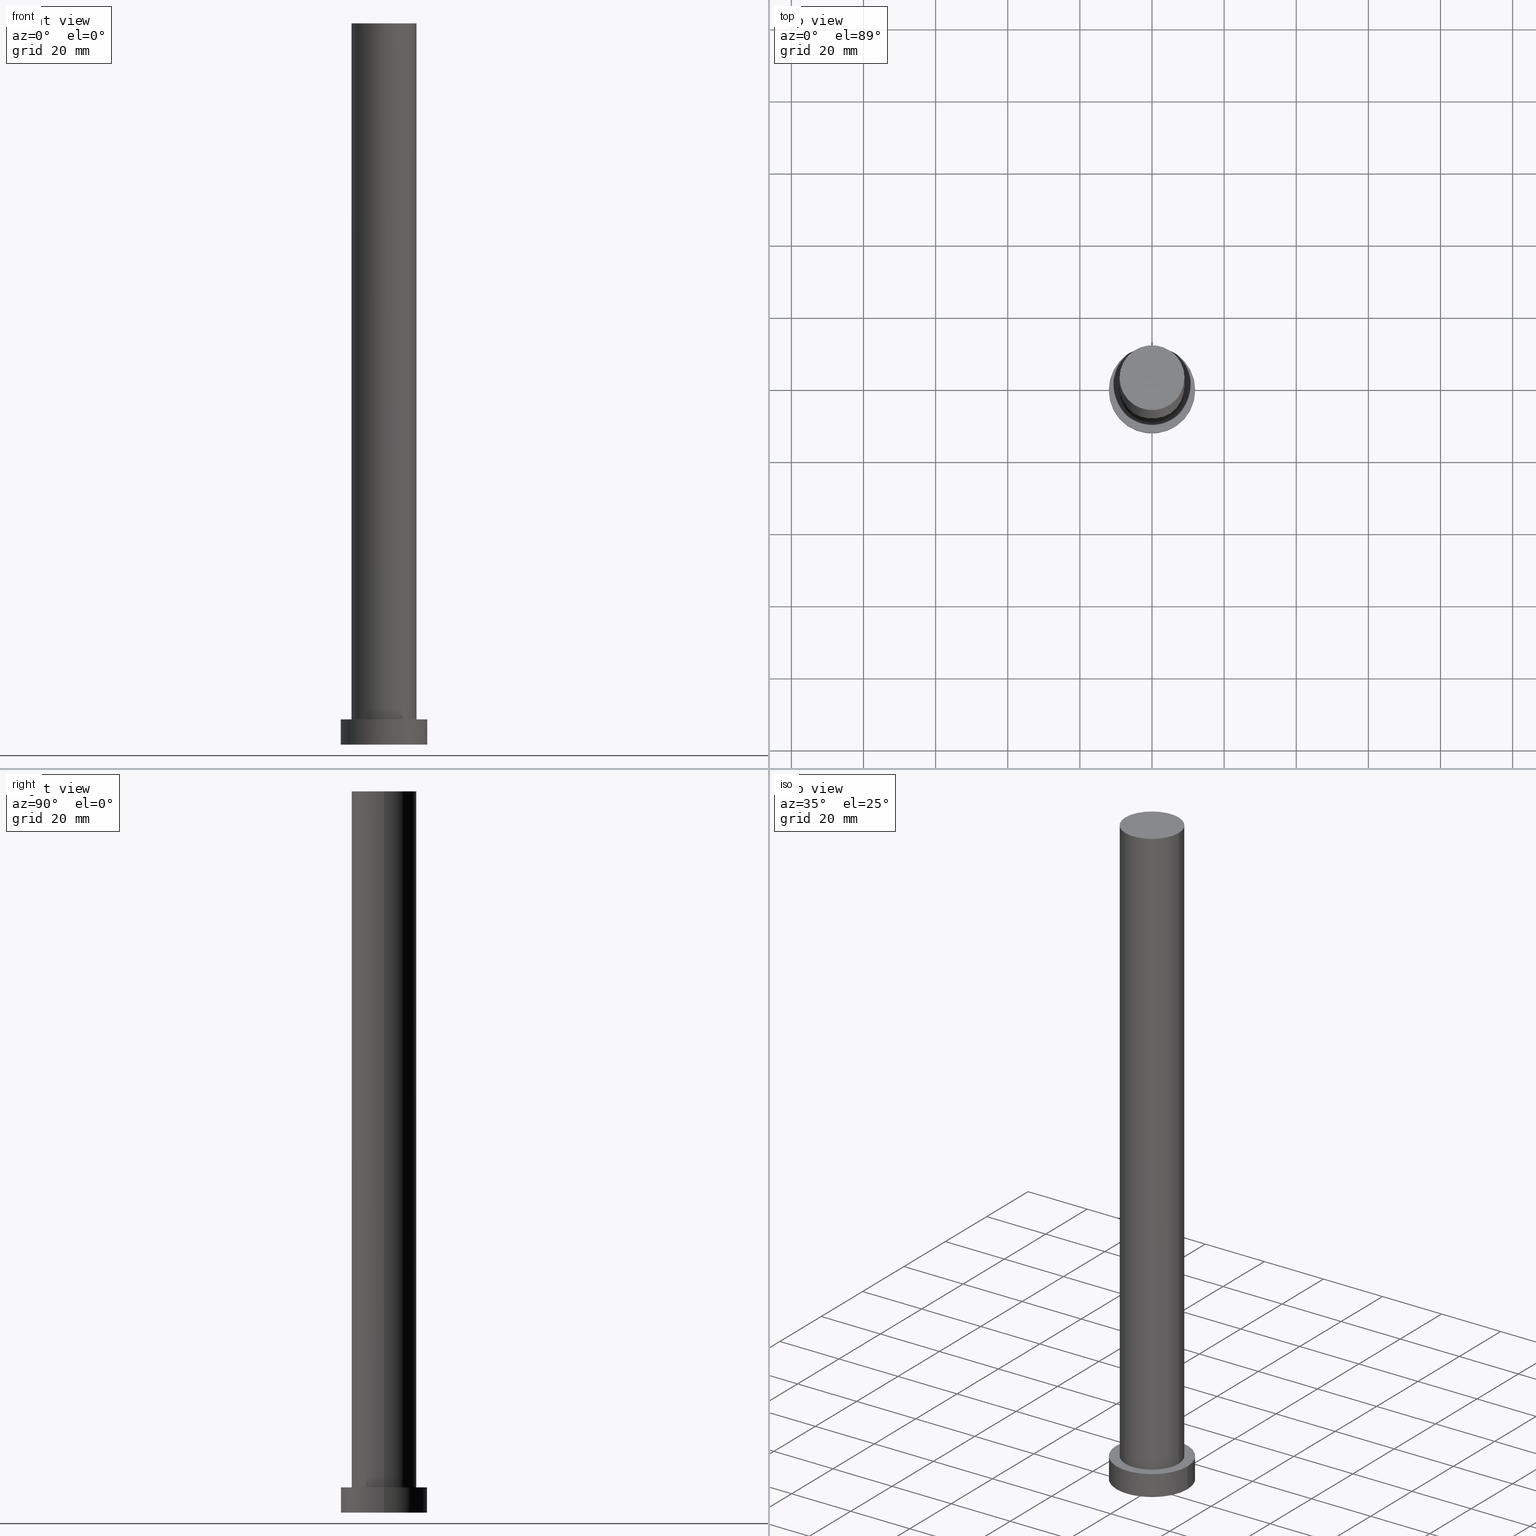
[diagram: canonical four-view strip — front | top / right | iso, engineering-drawing reading convention]
A machine part, canonical four-view strip (front | top / right | iso — engineering-drawing reading convention). The complete STEP part file that produces these views, byte-faithful:
ISO-10303-21;
HEADER;
FILE_DESCRIPTION (( 'STEP AP203' ),
    '1' );
FILE_NAME ('e8e5.STEP',
    '2023-02-13T07:50:47',
    ( '' ),
    ( '' ),
    'SwSTEP 2.0',
    'SolidWorks 2019',
    '' );
FILE_SCHEMA (( 'CONFIG_CONTROL_DESIGN' ));
ENDSEC;

DATA;
#1 = CALENDAR_DATE ( 2023, 13, 2 ) ;
#2 = PRODUCT_DEFINITION_SHAPE ( 'NONE', 'NONE',  #219 ) ;
#3 = VERTEX_POINT ( 'NONE', #62 ) ;
#4 = VERTEX_POINT ( 'NONE', #147 ) ;
#5 = LOCAL_TIME ( 8, 50, 47.00000000000000000, #19 ) ;
#6 = EDGE_CURVE ( 'NONE', #131, #170, #41, .T. ) ;
#7 = AXIS2_PLACEMENT_3D ( 'NONE', #193, #39, #99 ) ;
#8 = ORIENTED_EDGE ( 'NONE', *, *, #43, .F. ) ;
#9 = APPROVAL_ROLE ( '' ) ;
#10 = VERTEX_POINT ( 'NONE', #183 ) ;
#11 = DIRECTION ( 'NONE',  ( 1.000000000000000000, 0.000000000000000000, 0.000000000000000000 ) ) ;
#12 = ADVANCED_FACE ( 'NONE', ( #66 ), #168, .T. ) ;
#13 = DIRECTION ( 'NONE',  ( -0.000000000000000000, -0.000000000000000000, -1.000000000000000000 ) ) ;
#14 = CARTESIAN_POINT ( 'NONE',  ( -9.000000000000000000, 0.000000000000000000, 200.0000000000000000 ) ) ;
#15 = DIRECTION ( 'NONE',  ( -0.000000000000000000, -0.000000000000000000, -1.000000000000000000 ) ) ;
#16 = EDGE_CURVE ( 'NONE', #108, #129, #75, .T. ) ;
#17 = CARTESIAN_POINT ( 'NONE',  ( 0.000000000000000000, 0.000000000000000000, 0.000000000000000000 ) ) ;
#18 = COORDINATED_UNIVERSAL_TIME_OFFSET ( 1, 0, .AHEAD. ) ;
#19 = COORDINATED_UNIVERSAL_TIME_OFFSET ( 1, 0, .AHEAD. ) ;
#20 = EDGE_CURVE ( 'NONE', #170, #131, #59, .T. ) ;
#21 = DIRECTION ( 'NONE',  ( 1.000000000000000000, 0.000000000000000000, 0.000000000000000000 ) ) ;
#22 = AXIS2_PLACEMENT_3D ( 'NONE', #181, #148, #123 ) ;
#23 = CARTESIAN_POINT ( 'NONE',  ( -12.00000000000000178, 0.000000000000000000, 7.000000000000000000 ) ) ;
#24 = ORIENTED_EDGE ( 'NONE', *, *, #160, .F. ) ;
#25 = APPLICATION_PROTOCOL_DEFINITION ( 'international standard', 'config_control_design', 1994, #169 ) ;
#26 = APPROVAL ( #30, 'NEUR�EN�' ) ;
#27 = ORIENTED_EDGE ( 'NONE', *, *, #87, .T. ) ;
#28 = ADVANCED_FACE ( 'NONE', ( #142 ), #37, .T. ) ;
#29 = ORIENTED_EDGE ( 'NONE', *, *, #110, .T. ) ;
#30 = APPROVAL_STATUS ( 'not_yet_approved' ) ;
#31 = LOCAL_TIME ( 8, 50, 47.00000000000000000, #220 ) ;
#32 = EDGE_LOOP ( 'NONE', ( #24, #27, #89, #8 ) ) ;
#33 = DIRECTION ( 'NONE',  ( -1.000000000000000000, 0.000000000000000000, 0.000000000000000000 ) ) ;
#34 = DIRECTION ( 'NONE',  ( 1.000000000000000000, 0.000000000000000000, 0.000000000000000000 ) ) ;
#35 = CARTESIAN_POINT ( 'NONE',  ( 0.000000000000000000, 0.000000000000000000, 7.000000000000000000 ) ) ;
#36 = VECTOR ( 'NONE', #231, 1000.000000000000000 ) ;
#37 = CYLINDRICAL_SURFACE ( 'NONE', #103, 12.00000000000000178 ) ;
#38 = COORDINATED_UNIVERSAL_TIME_OFFSET ( 1, 0, .AHEAD. ) ;
#39 = DIRECTION ( 'NONE',  ( -0.000000000000000000, -0.000000000000000000, -1.000000000000000000 ) ) ;
#40 = PERSON_AND_ORGANIZATION ( #71, #202 ) ;
#41 = CIRCLE ( 'NONE', #73, 12.00000000000000178 ) ;
#42 = DATE_AND_TIME ( #200, #31 ) ;
#43 = EDGE_CURVE ( 'NONE', #241, #170, #116, .T. ) ;
#44 = DATE_AND_TIME ( #47, #206 ) ;
#45 = ORIENTED_EDGE ( 'NONE', *, *, #248, .F. ) ;
#46 = CIRCLE ( 'NONE', #22, 9.000000000000000000 ) ;
#47 = CALENDAR_DATE ( 2023, 13, 2 ) ;
#48 = ADVANCED_FACE ( 'NONE', ( #157 ), #195, .T. ) ;
#49 = ORIENTED_EDGE ( 'NONE', *, *, #16, .F. ) ;
#50 = CIRCLE ( 'NONE', #230, 9.000000000000000000 ) ;
#51 = CARTESIAN_POINT ( 'NONE',  ( -12.00000000000000178, 0.000000000000000000, 0.000000000000000000 ) ) ;
#52 = DIRECTION ( 'NONE',  ( 0.000000000000000000, 0.000000000000000000, 1.000000000000000000 ) ) ;
#53 = DIRECTION ( 'NONE',  ( -1.000000000000000000, 0.000000000000000000, 0.000000000000000000 ) ) ;
#54 = CARTESIAN_POINT ( 'NONE',  ( 0.000000000000000000, 0.000000000000000000, 0.000000000000000000 ) ) ;
#55 = AXIS2_PLACEMENT_3D ( 'NONE', #106, #61, #100 ) ;
#56 = LINE ( 'NONE', #14, #36 ) ;
#57 = PERSON_AND_ORGANIZATION ( #71, #202 ) ;
#58 = PERSON_AND_ORGANIZATION ( #71, #202 ) ;
#59 = CIRCLE ( 'NONE', #224, 12.00000000000000178 ) ;
#60 = ADVANCED_FACE ( 'NONE', ( #213 ), #74, .F. ) ;
#61 = DIRECTION ( 'NONE',  ( 0.000000000000000000, 0.000000000000000000, 1.000000000000000000 ) ) ;
#62 = CARTESIAN_POINT ( 'NONE',  ( -9.000000000000000000, 0.000000000000000000, 7.000000000000000000 ) ) ;
#63 = ORIENTED_EDGE ( 'NONE', *, *, #16, .T. ) ;
#64 = CC_DESIGN_PERSON_AND_ORGANIZATION_ASSIGNMENT ( #40, #125, ( #237 ) ) ;
#65 = APPROVAL_ROLE ( '' ) ;
#66 = FACE_OUTER_BOUND ( 'NONE', #135, .T. ) ;
#67 = CC_DESIGN_APPROVAL ( #180, ( #219 ) ) ;
#68 = EDGE_LOOP ( 'NONE', ( #29, #222 ) ) ;
#69 = AXIS2_PLACEMENT_3D ( 'NONE', #93, #192, #53 ) ;
#70 = ORIENTED_EDGE ( 'NONE', *, *, #20, .F. ) ;
#71 = PERSON ( 'NEUR�EN�', 'NEUR�EN�', 'NEUR�EN�', ('NEUR�EN�'), ('NEUR�EN�'), ('NEUR�EN�') ) ;
#72 = DIRECTION ( 'NONE',  ( 0.000000000000000000, 0.000000000000000000, 1.000000000000000000 ) ) ;
#73 = AXIS2_PLACEMENT_3D ( 'NONE', #126, #201, #21 ) ;
#74 = PLANE ( 'NONE',  #227 ) ;
#75 = LINE ( 'NONE', #216, #155 ) ;
#76 = CARTESIAN_POINT ( 'NONE',  ( 9.000000000000000000, 1.102182119232617714E-15, 200.0000000000000000 ) ) ;
#77 = DIRECTION ( 'NONE',  ( 1.000000000000000000, 0.000000000000000000, -0.000000000000000000 ) ) ;
#78 =( GEOMETRIC_REPRESENTATION_CONTEXT ( 3 ) GLOBAL_UNCERTAINTY_ASSIGNED_CONTEXT ( ( #173 ) ) GLOBAL_UNIT_ASSIGNED_CONTEXT ( ( #164, #81, #203 ) ) REPRESENTATION_CONTEXT ( 'NONE', 'WORKASPACE' ) );
#79 = APPROVAL_STATUS ( 'not_yet_approved' ) ;
#80 = DIRECTION ( 'NONE',  ( 1.000000000000000000, 0.000000000000000000, 0.000000000000000000 ) ) ;
#81 =( NAMED_UNIT ( * ) PLANE_ANGLE_UNIT ( ) SI_UNIT ( $, .RADIAN. ) );
#82 = AXIS2_PLACEMENT_3D ( 'NONE', #204, #249, #234 ) ;
#83 = CC_DESIGN_SECURITY_CLASSIFICATION ( #237, ( #172 ) ) ;
#84 = APPROVAL_DATE_TIME ( #44, #152 ) ;
#85 = DATE_TIME_ROLE ( 'creation_date' ) ;
#86 = ORIENTED_EDGE ( 'NONE', *, *, #119, .F. ) ;
#87 = EDGE_CURVE ( 'NONE', #4, #131, #121, .T. ) ;
#88 = APPROVAL_PERSON_ORGANIZATION ( #58, #180, #146 ) ;
#89 = ORIENTED_EDGE ( 'NONE', *, *, #6, .T. ) ;
#90 = ORIENTED_EDGE ( 'NONE', *, *, #196, .F. ) ;
#91 = CARTESIAN_POINT ( 'NONE',  ( 0.000000000000000000, 0.000000000000000000, 7.000000000000000000 ) ) ;
#92 = CC_DESIGN_APPROVAL ( #26, ( #237 ) ) ;
#93 = CARTESIAN_POINT ( 'NONE',  ( 0.000000000000000000, 0.000000000000000000, 7.000000000000000000 ) ) ;
#94 = CARTESIAN_POINT ( 'NONE',  ( 9.000000000000000000, 1.102182119232617714E-15, 7.000000000000000000 ) ) ;
#95 = ADVANCED_FACE ( 'NONE', ( #114, #247 ), #174, .T. ) ;
#96 = PERSON_AND_ORGANIZATION ( #71, #202 ) ;
#97 = DIRECTION ( 'NONE',  ( -0.000000000000000000, -0.000000000000000000, -1.000000000000000000 ) ) ;
#98 = DATE_AND_TIME ( #1, #112 ) ;
#99 = DIRECTION ( 'NONE',  ( -1.000000000000000000, 0.000000000000000000, 0.000000000000000000 ) ) ;
#100 = DIRECTION ( 'NONE',  ( 1.000000000000000000, 0.000000000000000000, 0.000000000000000000 ) ) ;
#101 = PERSON_AND_ORGANIZATION ( #71, #202 ) ;
#102 = DATE_AND_TIME ( #198, #150 ) ;
#103 = AXIS2_PLACEMENT_3D ( 'NONE', #35, #212, #33 ) ;
#104 = APPLICATION_CONTEXT ( 'configuration controlled 3d designs of mechanical parts and assemblies' ) ;
#105 = ORIENTED_EDGE ( 'NONE', *, *, #160, .T. ) ;
#106 = CARTESIAN_POINT ( 'NONE',  ( 0.000000000000000000, 0.000000000000000000, 0.000000000000000000 ) ) ;
#107 = CC_DESIGN_PERSON_AND_ORGANIZATION_ASSIGNMENT ( #145, #225, ( #219 ) ) ;
#108 = VERTEX_POINT ( 'NONE', #76 ) ;
#109 = AXIS2_PLACEMENT_3D ( 'NONE', #140, #72, #154 ) ;
#110 = EDGE_CURVE ( 'NONE', #10, #108, #242, .T. ) ;
#111 = AXIS2_PLACEMENT_3D ( 'NONE', #235, #232, #229 ) ;
#112 = LOCAL_TIME ( 8, 50, 47.00000000000000000, #38 ) ;
#113 = ORIENTED_EDGE ( 'NONE', *, *, #209, .F. ) ;
#114 = FACE_BOUND ( 'NONE', #149, .T. ) ;
#115 = DESIGN_CONTEXT ( 'detailed design', #104, 'design' ) ;
#116 = LINE ( 'NONE', #250, #136 ) ;
#117 = MANIFOLD_SOLID_BREP ( 'P�idat vysunut�m3', #128 ) ;
#118 = VECTOR ( 'NONE', #97, 1000.000000000000000 ) ;
#119 = EDGE_CURVE ( 'NONE', #10, #3, #56, .T. ) ;
#120 = DIRECTION ( 'NONE',  ( 0.000000000000000000, 0.000000000000000000, 1.000000000000000000 ) ) ;
#121 = LINE ( 'NONE', #162, #118 ) ;
#122 = CYLINDRICAL_SURFACE ( 'NONE', #69, 12.00000000000000178 ) ;
#123 = DIRECTION ( 'NONE',  ( 1.000000000000000000, 0.000000000000000000, 0.000000000000000000 ) ) ;
#124 = PERSON_AND_ORGANIZATION ( #71, #202 ) ;
#125 = PERSON_AND_ORGANIZATION_ROLE ( 'classification_officer' ) ;
#126 = CARTESIAN_POINT ( 'NONE',  ( 0.000000000000000000, 0.000000000000000000, 0.000000000000000000 ) ) ;
#127 = MECHANICAL_CONTEXT ( 'NONE', #169, 'mechanical' ) ;
#128 = CLOSED_SHELL ( 'NONE', ( #12, #28, #134, #95, #60, #48, #165 ) ) ;
#129 = VERTEX_POINT ( 'NONE', #94 ) ;
#130 = DIRECTION ( 'NONE',  ( 0.000000000000000000, 0.000000000000000000, 1.000000000000000000 ) ) ;
#131 = VERTEX_POINT ( 'NONE', #143 ) ;
#132 = ORIENTED_EDGE ( 'NONE', *, *, #110, .F. ) ;
#133 = APPROVAL_PERSON_ORGANIZATION ( #96, #26, #9 ) ;
#134 = ADVANCED_FACE ( 'NONE', ( #217 ), #122, .T. ) ;
#135 = EDGE_LOOP ( 'NONE', ( #45, #63, #151, #86 ) ) ;
#136 = VECTOR ( 'NONE', #13, 1000.000000000000000 ) ;
#137 = CC_DESIGN_APPROVAL ( #152, ( #172 ) ) ;
#138 = CARTESIAN_POINT ( 'NONE',  ( 0.000000000000000000, 0.000000000000000000, 7.000000000000000000 ) ) ;
#139 = CARTESIAN_POINT ( 'NONE',  ( 0.000000000000000000, 0.000000000000000000, 7.000000000000000000 ) ) ;
#140 = CARTESIAN_POINT ( 'NONE',  ( 0.000000000000000000, 0.000000000000000000, 200.0000000000000000 ) ) ;
#141 = CIRCLE ( 'NONE', #161, 9.000000000000000000 ) ;
#142 = FACE_OUTER_BOUND ( 'NONE', #32, .T. ) ;
#143 = CARTESIAN_POINT ( 'NONE',  ( 12.00000000000000178, 1.469576158976824144E-15, 0.000000000000000000 ) ) ;
#144 = PERSON_AND_ORGANIZATION_ROLE ( 'design_supplier' ) ;
#145 = PERSON_AND_ORGANIZATION ( #71, #202 ) ;
#146 = APPROVAL_ROLE ( '' ) ;
#147 = CARTESIAN_POINT ( 'NONE',  ( 12.00000000000000178, 1.469576158976824144E-15, 7.000000000000000000 ) ) ;
#148 = DIRECTION ( 'NONE',  ( 0.000000000000000000, 0.000000000000000000, 1.000000000000000000 ) ) ;
#149 = EDGE_LOOP ( 'NONE', ( #228, #113 ) ) ;
#150 = LOCAL_TIME ( 8, 50, 47.00000000000000000, #184 ) ;
#151 = ORIENTED_EDGE ( 'NONE', *, *, #209, .T. ) ;
#152 = APPROVAL ( #221, 'NEUR�EN�' ) ;
#153 = ORIENTED_EDGE ( 'NONE', *, *, #20, .T. ) ;
#154 = DIRECTION ( 'NONE',  ( 1.000000000000000000, 0.000000000000000000, -0.000000000000000000 ) ) ;
#155 = VECTOR ( 'NONE', #15, 1000.000000000000000 ) ;
#156 = DIRECTION ( 'NONE',  ( 1.000000000000000000, 0.000000000000000000, -0.000000000000000000 ) ) ;
#157 = FACE_OUTER_BOUND ( 'NONE', #244, .T. ) ;
#158 = FACE_OUTER_BOUND ( 'NONE', #68, .T. ) ;
#159 = ADVANCED_BREP_SHAPE_REPRESENTATION ( 'e8e5', ( #117, #55 ), #78 ) ;
#160 = EDGE_CURVE ( 'NONE', #4, #241, #182, .T. ) ;
#161 = AXIS2_PLACEMENT_3D ( 'NONE', #253, #130, #80 ) ;
#162 = CARTESIAN_POINT ( 'NONE',  ( 12.00000000000000178, 1.469576158976824144E-15, 7.000000000000000000 ) ) ;
#163 = APPROVAL_DATE_TIME ( #98, #26 ) ;
#164 =( LENGTH_UNIT ( ) NAMED_UNIT ( * ) SI_UNIT ( .MILLI., .METRE. ) );
#165 = ADVANCED_FACE ( 'NONE', ( #158 ), #245, .T. ) ;
#166 = DIRECTION ( 'NONE',  ( 1.000000000000000000, 0.000000000000000000, 0.000000000000000000 ) ) ;
#167 = APPROVAL_DATE_TIME ( #102, #180 ) ;
#168 = CYLINDRICAL_SURFACE ( 'NONE', #82, 9.000000000000000000 ) ;
#169 = APPLICATION_CONTEXT ( 'configuration controlled 3d designs of mechanical parts and assemblies' ) ;
#170 = VERTEX_POINT ( 'NONE', #51 ) ;
#171 = DIRECTION ( 'NONE',  ( 0.000000000000000000, 0.000000000000000000, 1.000000000000000000 ) ) ;
#172 = PRODUCT_DEFINITION_FORMATION_WITH_SPECIFIED_SOURCE ( 'LIBOVOLN�', '', #205, .NOT_KNOWN. ) ;
#173 = UNCERTAINTY_MEASURE_WITH_UNIT (LENGTH_MEASURE( 1.000000000000000082E-05 ), #164, 'distance_accuracy_value', 'NONE');
#174 = PLANE ( 'NONE',  #190 ) ;
#175 = CARTESIAN_POINT ( 'NONE',  ( 0.000000000000000000, 0.000000000000000000, 7.000000000000000000 ) ) ;
#176 = CC_DESIGN_DATE_AND_TIME_ASSIGNMENT ( #215, #194, ( #237 ) ) ;
#177 = DIRECTION ( 'NONE',  ( 0.000000000000000000, 0.000000000000000000, 1.000000000000000000 ) ) ;
#178 = APPROVAL_PERSON_ORGANIZATION ( #124, #152, #65 ) ;
#179 = APPLICATION_PROTOCOL_DEFINITION ( 'international standard', 'config_control_design', 1994, #104 ) ;
#180 = APPROVAL ( #79, 'NEUR�EN�' ) ;
#181 = CARTESIAN_POINT ( 'NONE',  ( 0.000000000000000000, 0.000000000000000000, 200.0000000000000000 ) ) ;
#182 = CIRCLE ( 'NONE', #214, 12.00000000000000178 ) ;
#183 = CARTESIAN_POINT ( 'NONE',  ( -9.000000000000000000, 0.000000000000000000, 200.0000000000000000 ) ) ;
#184 = COORDINATED_UNIVERSAL_TIME_OFFSET ( 1, 0, .AHEAD. ) ;
#185 = CC_DESIGN_DATE_AND_TIME_ASSIGNMENT ( #42, #85, ( #219 ) ) ;
#186 = ORIENTED_EDGE ( 'NONE', *, *, #196, .T. ) ;
#187 = ORIENTED_EDGE ( 'NONE', *, *, #87, .F. ) ;
#188 = EDGE_CURVE ( 'NONE', #3, #129, #50, .T. ) ;
#189 = ORIENTED_EDGE ( 'NONE', *, *, #43, .T. ) ;
#190 = AXIS2_PLACEMENT_3D ( 'NONE', #139, #177, #77 ) ;
#191 = EDGE_LOOP ( 'NONE', ( #187, #90, #189, #153 ) ) ;
#192 = DIRECTION ( 'NONE',  ( -0.000000000000000000, -0.000000000000000000, -1.000000000000000000 ) ) ;
#193 = CARTESIAN_POINT ( 'NONE',  ( 0.000000000000000000, 0.000000000000000000, 200.0000000000000000 ) ) ;
#194 = DATE_TIME_ROLE ( 'classification_date' ) ;
#195 = CYLINDRICAL_SURFACE ( 'NONE', #7, 9.000000000000000000 ) ;
#196 = EDGE_CURVE ( 'NONE', #241, #4, #210, .T. ) ;
#197 = DIRECTION ( 'NONE',  ( 0.000000000000000000, 0.000000000000000000, 1.000000000000000000 ) ) ;
#198 = CALENDAR_DATE ( 2023, 13, 2 ) ;
#199 = SHAPE_DEFINITION_REPRESENTATION ( #2, #159 ) ;
#200 = CALENDAR_DATE ( 2023, 13, 2 ) ;
#201 = DIRECTION ( 'NONE',  ( 0.000000000000000000, 0.000000000000000000, 1.000000000000000000 ) ) ;
#202 = ORGANIZATION ( 'NEUR�EN�', 'NEUR�EN�', '' ) ;
#203 =( NAMED_UNIT ( * ) SI_UNIT ( $, .STERADIAN. ) SOLID_ANGLE_UNIT ( ) );
#204 = CARTESIAN_POINT ( 'NONE',  ( 0.000000000000000000, 0.000000000000000000, 200.0000000000000000 ) ) ;
#205 = PRODUCT ( 'e8e5', 'e8e5', '', ( #127 ) ) ;
#206 = LOCAL_TIME ( 8, 50, 47.00000000000000000, #18 ) ;
#207 = EDGE_LOOP ( 'NONE', ( #70, #226 ) ) ;
#208 = EDGE_LOOP ( 'NONE', ( #186, #105 ) ) ;
#209 = EDGE_CURVE ( 'NONE', #129, #3, #141, .T. ) ;
#210 = CIRCLE ( 'NONE', #243, 12.00000000000000178 ) ;
#211 = DIRECTION ( 'NONE',  ( 0.000000000000000000, 0.000000000000000000, 1.000000000000000000 ) ) ;
#212 = DIRECTION ( 'NONE',  ( -0.000000000000000000, -0.000000000000000000, -1.000000000000000000 ) ) ;
#213 = FACE_OUTER_BOUND ( 'NONE', #207, .T. ) ;
#214 = AXIS2_PLACEMENT_3D ( 'NONE', #175, #197, #34 ) ;
#215 = DATE_AND_TIME ( #254, #5 ) ;
#216 = CARTESIAN_POINT ( 'NONE',  ( 9.000000000000000000, 1.102182119232617714E-15, 200.0000000000000000 ) ) ;
#217 = FACE_OUTER_BOUND ( 'NONE', #191, .T. ) ;
#218 = SECURITY_CLASSIFICATION_LEVEL ( 'unclassified' ) ;
#219 = PRODUCT_DEFINITION ( 'NEZN�M�', '', #172, #115 ) ;
#220 = COORDINATED_UNIVERSAL_TIME_OFFSET ( 1, 0, .AHEAD. ) ;
#221 = APPROVAL_STATUS ( 'not_yet_approved' ) ;
#222 = ORIENTED_EDGE ( 'NONE', *, *, #248, .T. ) ;
#223 = ORIENTED_EDGE ( 'NONE', *, *, #119, .T. ) ;
#224 = AXIS2_PLACEMENT_3D ( 'NONE', #54, #52, #246 ) ;
#225 = PERSON_AND_ORGANIZATION_ROLE ( 'creator' ) ;
#226 = ORIENTED_EDGE ( 'NONE', *, *, #6, .F. ) ;
#227 = AXIS2_PLACEMENT_3D ( 'NONE', #17, #120, #156 ) ;
#228 = ORIENTED_EDGE ( 'NONE', *, *, #188, .F. ) ;
#229 = DIRECTION ( 'NONE',  ( 1.000000000000000000, 0.000000000000000000, 0.000000000000000000 ) ) ;
#230 = AXIS2_PLACEMENT_3D ( 'NONE', #138, #211, #11 ) ;
#231 = DIRECTION ( 'NONE',  ( -0.000000000000000000, -0.000000000000000000, -1.000000000000000000 ) ) ;
#232 = DIRECTION ( 'NONE',  ( 0.000000000000000000, 0.000000000000000000, 1.000000000000000000 ) ) ;
#233 = CC_DESIGN_PERSON_AND_ORGANIZATION_ASSIGNMENT ( #101, #252, ( #172 ) ) ;
#234 = DIRECTION ( 'NONE',  ( -1.000000000000000000, 0.000000000000000000, 0.000000000000000000 ) ) ;
#235 = CARTESIAN_POINT ( 'NONE',  ( 0.000000000000000000, 0.000000000000000000, 200.0000000000000000 ) ) ;
#236 = PERSON_AND_ORGANIZATION ( #71, #202 ) ;
#237 = SECURITY_CLASSIFICATION ( '', '', #218 ) ;
#238 = ORIENTED_EDGE ( 'NONE', *, *, #188, .T. ) ;
#239 = PRODUCT_RELATED_PRODUCT_CATEGORY ( 'detail', '', ( #205 ) ) ;
#240 = PERSON_AND_ORGANIZATION_ROLE ( 'design_owner' ) ;
#241 = VERTEX_POINT ( 'NONE', #23 ) ;
#242 = CIRCLE ( 'NONE', #111, 9.000000000000000000 ) ;
#243 = AXIS2_PLACEMENT_3D ( 'NONE', #91, #171, #166 ) ;
#244 = EDGE_LOOP ( 'NONE', ( #49, #132, #223, #238 ) ) ;
#245 = PLANE ( 'NONE',  #109 ) ;
#246 = DIRECTION ( 'NONE',  ( 1.000000000000000000, 0.000000000000000000, 0.000000000000000000 ) ) ;
#247 = FACE_OUTER_BOUND ( 'NONE', #208, .T. ) ;
#248 = EDGE_CURVE ( 'NONE', #108, #10, #46, .T. ) ;
#249 = DIRECTION ( 'NONE',  ( -0.000000000000000000, -0.000000000000000000, -1.000000000000000000 ) ) ;
#250 = CARTESIAN_POINT ( 'NONE',  ( -12.00000000000000178, 0.000000000000000000, 7.000000000000000000 ) ) ;
#251 = CC_DESIGN_PERSON_AND_ORGANIZATION_ASSIGNMENT ( #57, #240, ( #205 ) ) ;
#252 = PERSON_AND_ORGANIZATION_ROLE ( 'creator' ) ;
#253 = CARTESIAN_POINT ( 'NONE',  ( 0.000000000000000000, 0.000000000000000000, 7.000000000000000000 ) ) ;
#254 = CALENDAR_DATE ( 2023, 13, 2 ) ;
#255 = CC_DESIGN_PERSON_AND_ORGANIZATION_ASSIGNMENT ( #236, #144, ( #172 ) ) ;
ENDSEC;
END-ISO-10303-21;
